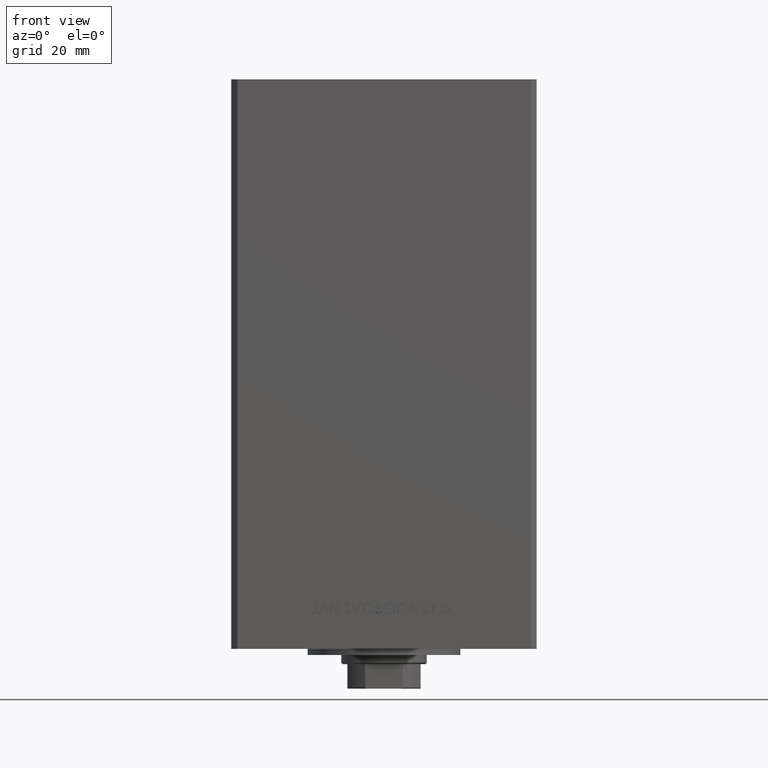
[diagram: clean part render]
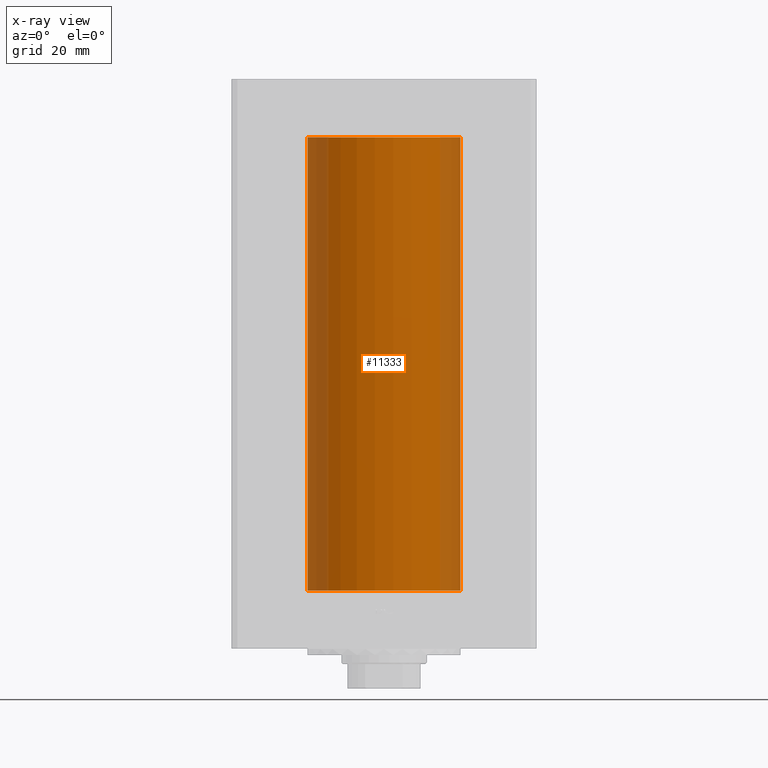
[diagram: x-ray — body ghosted, one internal face saturated and labeled with its STEP entity id]
A machine part, front view, then the same camera in x-ray: the body is ghosted and one INTERNAL B-rep face — a face not visible from any outside direction — is saturated and labeled: STEP entity #11333.
In plain terms, the highlighted cylindrical surface (partial cylindrical patch) has radius 25 mm, axis along (-0, -0, -1).
Its self-contained STEP definition (entity closure, byte-faithful):
#280 = VERTEX_POINT ( 'NONE', #1530 ) ;
#907 = CIRCLE ( 'NONE', #12815, 25.00000000000000000 ) ;
#1530 = CARTESIAN_POINT ( 'NONE',  ( -25.00000000000000000, 0.000000000000000000, 0.000000000000000000 ) ) ;
#7388 = ORIENTED_EDGE ( 'NONE', *, *, #46820, .T. ) ;
#9689 = EDGE_CURVE ( 'NONE', #46644, #280, #15524, .T. ) ;
#11333 = ADVANCED_FACE ( 'NONE', ( #25173 ), #33131, .F. ) ;
#11786 = ORIENTED_EDGE ( 'NONE', *, *, #9689, .F. ) ;
#12815 = AXIS2_PLACEMENT_3D ( 'NONE', #18774, #22736, #34426 ) ;
#13339 = EDGE_CURVE ( 'NONE', #40473, #24983, #24185, .T. ) ;
#13743 = CIRCLE ( 'NONE', #20103, 25.00000000000000000 ) ;
#14982 = DIRECTION ( 'NONE',  ( -1.000000000000000000, 0.000000000000000000, 0.000000000000000000 ) ) ;
#15524 = LINE ( 'NONE', #19253, #37672 ) ;
#15949 = CARTESIAN_POINT ( 'NONE',  ( 25.00000000000000000, 3.061616997868383043E-15, 0.000000000000000000 ) ) ;
#18774 = CARTESIAN_POINT ( 'NONE',  ( 0.000000000000000000, 0.000000000000000000, 0.000000000000000000 ) ) ;
#19253 = CARTESIAN_POINT ( 'NONE',  ( -25.00000000000000000, 0.000000000000000000, 148.5000000000000000 ) ) ;
#19942 = CARTESIAN_POINT ( 'NONE',  ( 0.000000000000000000, 0.000000000000000000, 148.5000000000000000 ) ) ;
#20103 = AXIS2_PLACEMENT_3D ( 'NONE', #19942, #31851, #35099 ) ;
#20479 = CARTESIAN_POINT ( 'NONE',  ( 25.00000000000000000, 3.061616997868383043E-15, 148.5000000000000000 ) ) ;
#21459 = CARTESIAN_POINT ( 'NONE',  ( 0.000000000000000000, 0.000000000000000000, 148.5000000000000000 ) ) ;
#22736 = DIRECTION ( 'NONE',  ( -0.000000000000000000, 0.000000000000000000, 1.000000000000000000 ) ) ;
#23370 = VECTOR ( 'NONE', #24685, 1000.000000000000000 ) ;
#24185 = LINE ( 'NONE', #20479, #23370 ) ;
#24685 = DIRECTION ( 'NONE',  ( -0.000000000000000000, -0.000000000000000000, -1.000000000000000000 ) ) ;
#24983 = VERTEX_POINT ( 'NONE', #15949 ) ;
#25173 = FACE_OUTER_BOUND ( 'NONE', #47943, .T. ) ;
#31851 = DIRECTION ( 'NONE',  ( -0.000000000000000000, 0.000000000000000000, 1.000000000000000000 ) ) ;
#33131 = CYLINDRICAL_SURFACE ( 'NONE', #38567, 25.00000000000000000 ) ;
#33376 = DIRECTION ( 'NONE',  ( -0.000000000000000000, -0.000000000000000000, -1.000000000000000000 ) ) ;
#33769 = EDGE_CURVE ( 'NONE', #280, #24983, #907, .T. ) ;
#33910 = DIRECTION ( 'NONE',  ( -0.000000000000000000, -0.000000000000000000, -1.000000000000000000 ) ) ;
#34426 = DIRECTION ( 'NONE',  ( 1.000000000000000000, 0.000000000000000000, 0.000000000000000000 ) ) ;
#35099 = DIRECTION ( 'NONE',  ( 1.000000000000000000, 0.000000000000000000, 0.000000000000000000 ) ) ;
#37672 = VECTOR ( 'NONE', #33910, 1000.000000000000000 ) ;
#37961 = ORIENTED_EDGE ( 'NONE', *, *, #33769, .F. ) ;
#38567 = AXIS2_PLACEMENT_3D ( 'NONE', #21459, #33376, #14982 ) ;
#38855 = CARTESIAN_POINT ( 'NONE',  ( 25.00000000000000000, 3.061616997868383043E-15, 148.5000000000000000 ) ) ;
#40473 = VERTEX_POINT ( 'NONE', #38855 ) ;
#45541 = CARTESIAN_POINT ( 'NONE',  ( -25.00000000000000000, 0.000000000000000000, 148.5000000000000000 ) ) ;
#46644 = VERTEX_POINT ( 'NONE', #45541 ) ;
#46820 = EDGE_CURVE ( 'NONE', #46644, #40473, #13743, .T. ) ;
#47943 = EDGE_LOOP ( 'NONE', ( #7388, #47951, #37961, #11786 ) ) ;
#47951 = ORIENTED_EDGE ( 'NONE', *, *, #13339, .T. ) ;